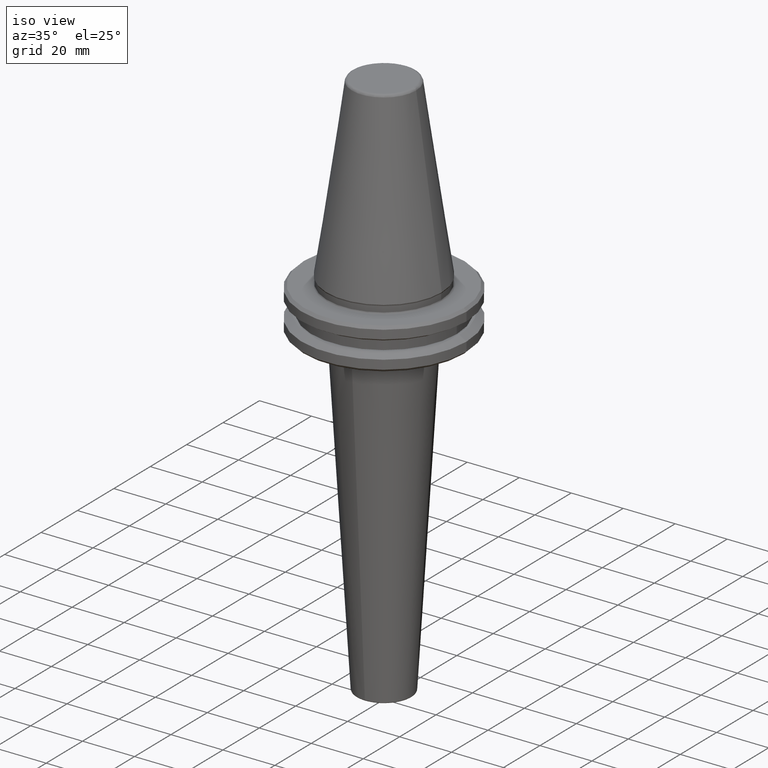
[diagram: clean part render]
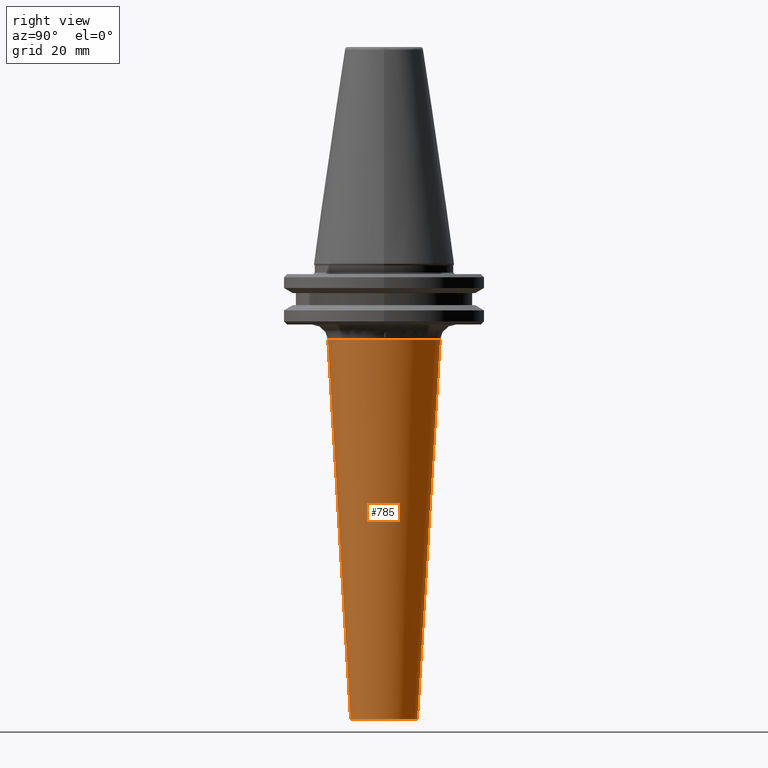
[diagram: tour spotlight — one face highlighted and labeled with its STEP entity id]
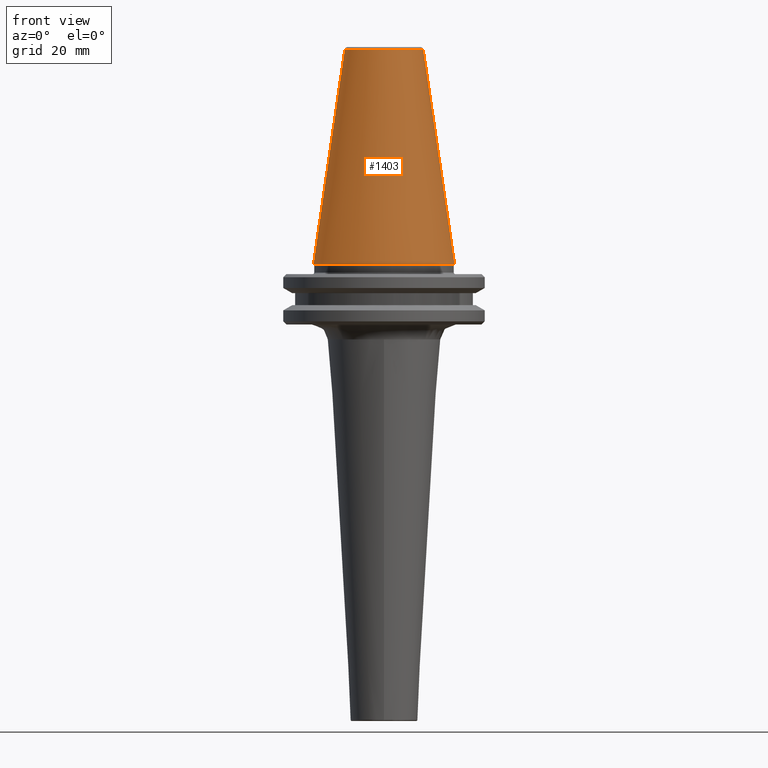
[diagram: tour spotlight — one face highlighted and labeled with its STEP entity id]
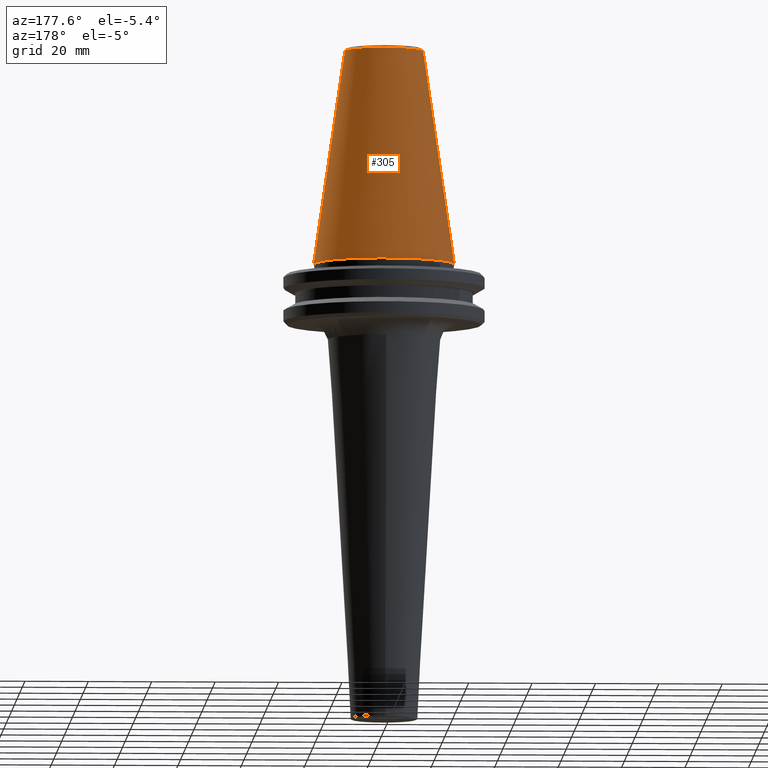
[diagram: tour spotlight — one face highlighted and labeled with its STEP entity id]
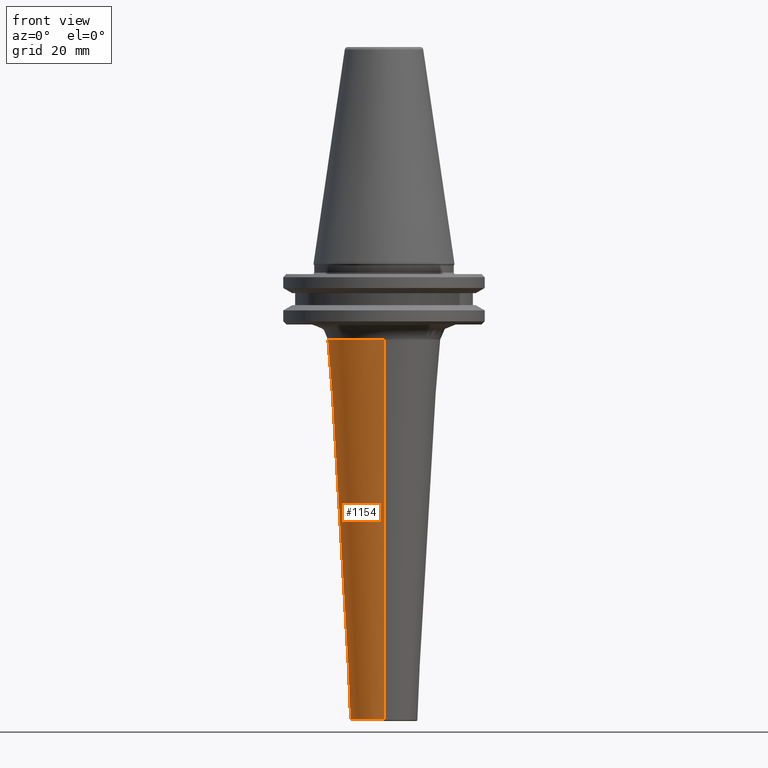
[diagram: tour spotlight — one face highlighted and labeled with its STEP entity id]
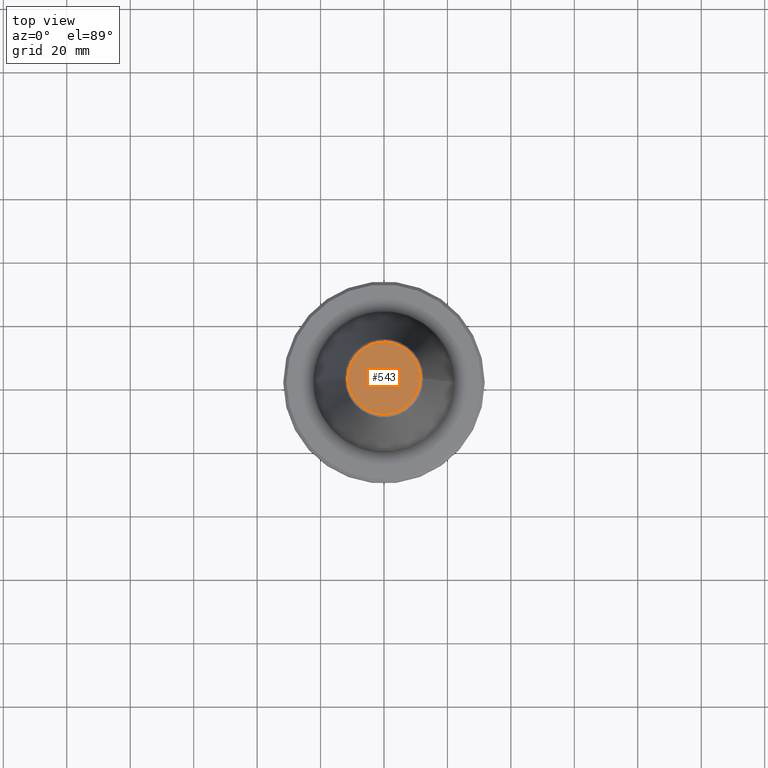
[diagram: tour spotlight — one face highlighted and labeled with its STEP entity id]
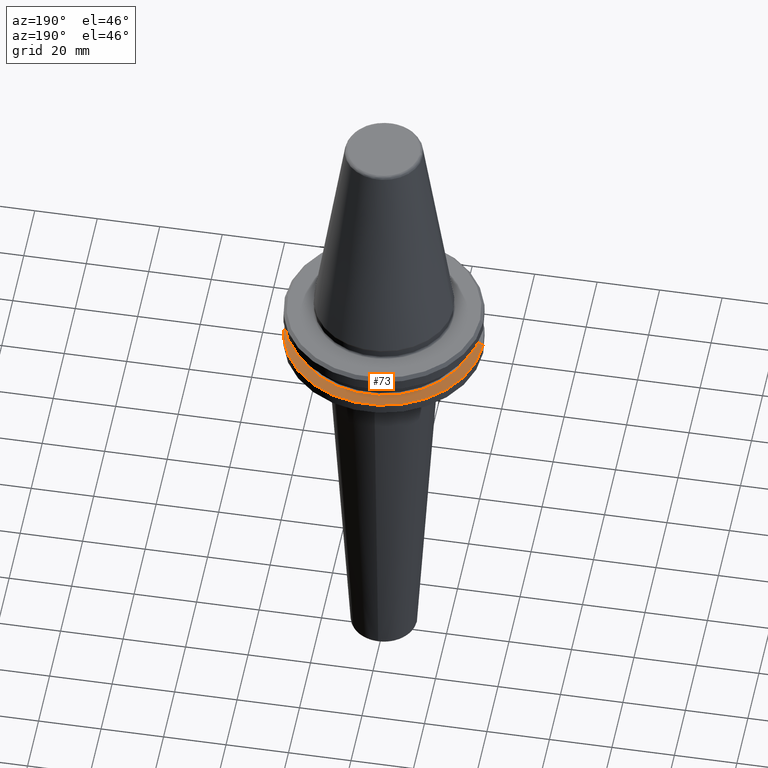
[diagram: tour spotlight — one face highlighted and labeled with its STEP entity id]
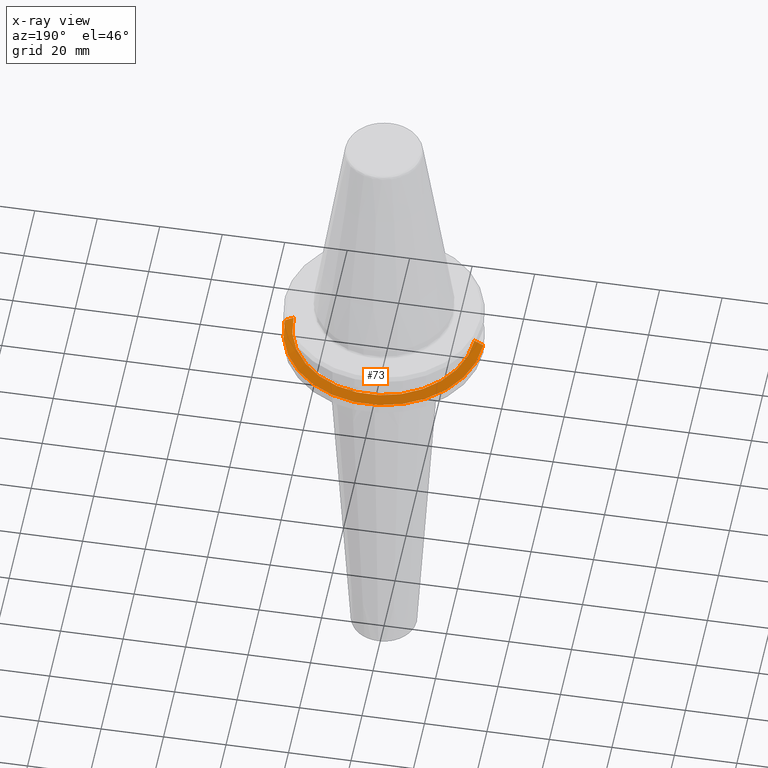
[diagram: x-ray of the same camera — body ghosted, this tour face saturated]
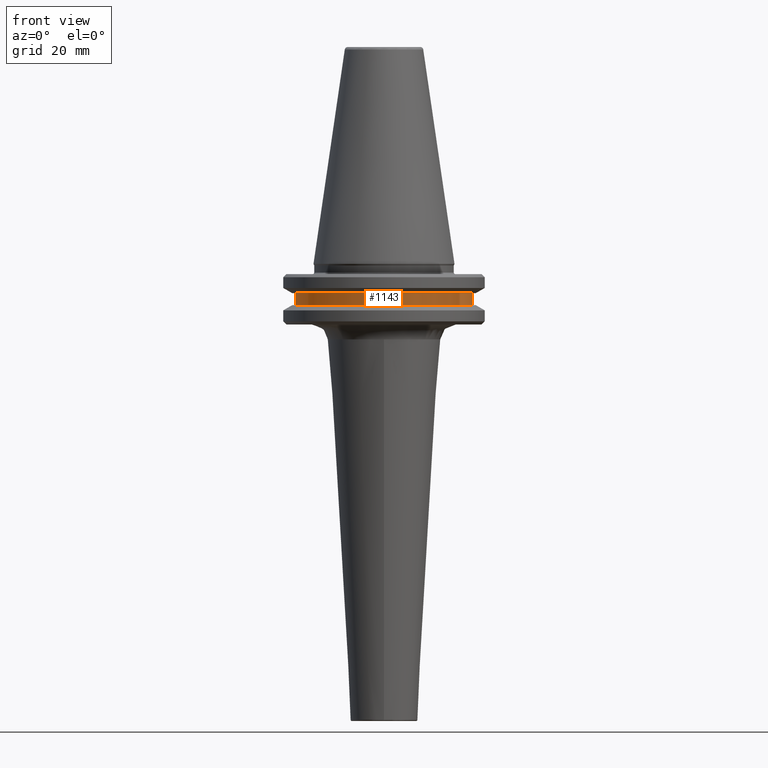
[diagram: tour spotlight — one face highlighted and labeled with its STEP entity id]
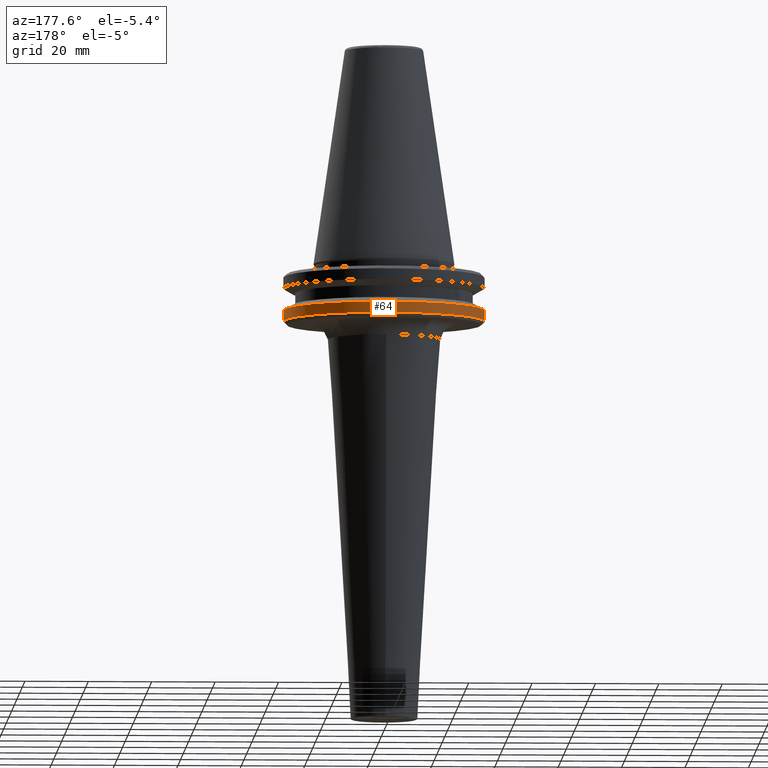
[diagram: tour spotlight — one face highlighted and labeled with its STEP entity id]
A machine part: a face-by-face anatomy tour. The part has 36 B-rep faces; the first image is the clean iso view, then the 8 largest visible faces are spotlighted one at a time (largest first), each with its STEP entity span.

Face 1 — right view, entity #785. In plain terms, the highlighted conical surface has half-angle 3.434 deg.
Definition (entity closure, byte-faithful):
#32 = LINE ( 'NONE', #249, #991 ) ;
#57 = CIRCLE ( 'NONE', #1131, 17.71796768721838300 ) ;
#66 = CARTESIAN_POINT ( 'NONE',  ( 1.729233750206187900E-015, 10.52256258502253400, -143.7239569162911400 ) ) ;
#67 = VERTEX_POINT ( 'NONE', #1467 ) ;
#71 = DIRECTION ( 'NONE',  ( 7.334690213358260400E-018, 0.05989229072794657900, 0.9982048454657787000 ) ) ;
#103 = EDGE_LOOP ( 'NONE', ( #699, #1398, #1448, #573, #756, #1138 ) ) ;
#123 = EDGE_CURVE ( 'NONE', #1255, #641, #1351, .T. ) ;
#127 = DIRECTION ( 'NONE',  ( -0.0000000000000000000, -0.0000000000000000000, -1.000000000000000000 ) ) ;
#135 = AXIS2_PLACEMENT_3D ( 'NONE', #928, #337, #450 ) ;
#212 = AXIS2_PLACEMENT_3D ( 'NONE', #645, #1494, #767 ) ;
#249 = CARTESIAN_POINT ( 'NONE',  ( 0.0000000000000000000, -17.71796768721838300, -23.80053854636023300 ) ) ;
#268 = DIRECTION ( 'NONE',  ( -0.0000000000000000000, -0.0000000000000000000, -1.000000000000000000 ) ) ;
#285 = CIRCLE ( 'NONE', #748, 17.71796768721838300 ) ;
#319 = VERTEX_POINT ( 'NONE', #837 ) ;
#321 = CARTESIAN_POINT ( 'NONE',  ( 10.52256258502254300, 0.0000000000000000000, -143.7239569162911400 ) ) ;
#337 = DIRECTION ( 'NONE',  ( 0.0000000000000000000, 0.0000000000000000000, 1.000000000000000000 ) ) ;
#404 = DIRECTION ( 'NONE',  ( 0.0000000000000000000, -9.790758774372438300E-017, 1.000000000000000000 ) ) ;
#450 = DIRECTION ( 'NONE',  ( 1.000000000000000000, 0.0000000000000000000, 0.0000000000000000000 ) ) ;
#485 = AXIS2_PLACEMENT_3D ( 'NONE', #870, #404, #994 ) ;
#507 = CARTESIAN_POINT ( 'NONE',  ( 0.0000000000000000000, -17.71796768721838000, -23.80053854636027200 ) ) ;
#555 = CARTESIAN_POINT ( 'NONE',  ( 2.169825241554822800E-015, 17.71796768721838300, -23.80053854636022600 ) ) ;
#573 = ORIENTED_EDGE ( 'NONE', *, *, #1533, .T. ) ;
#584 = LINE ( 'NONE', #555, #1344 ) ;
#641 = VERTEX_POINT ( 'NONE', #66 ) ;
#645 = CARTESIAN_POINT ( 'NONE',  ( 0.0000000000000000000, 0.0000000000000000000, -143.7239569162911400 ) ) ;
#699 = ORIENTED_EDGE ( 'NONE', *, *, #1388, .T. ) ;
#715 = CIRCLE ( 'NONE', #212, 10.52256258502253400 ) ;
#733 = DIRECTION ( 'NONE',  ( 0.0000000000000000000, -0.05989229072794677300, 0.9982048454657787000 ) ) ;
#748 = AXIS2_PLACEMENT_3D ( 'NONE', #842, #127, #966 ) ;
#756 = ORIENTED_EDGE ( 'NONE', *, *, #1073, .T. ) ;
#767 = DIRECTION ( 'NONE',  ( 1.000000000000000000, 0.0000000000000000000, 0.0000000000000000000 ) ) ;
#785 = ADVANCED_FACE ( 'NONE', ( #921 ), #1491, .T. ) ;
#837 = CARTESIAN_POINT ( 'NONE',  ( 2.169825241554822400E-015, 17.71796768721838000, -23.80053854636027200 ) ) ;
#840 = CARTESIAN_POINT ( 'NONE',  ( 17.71796768721838300, 0.0000000000000000000, -23.80053854636027200 ) ) ;
#842 = CARTESIAN_POINT ( 'NONE',  ( 0.0000000000000000000, 0.0000000000000000000, -23.80053854636027200 ) ) ;
#870 = CARTESIAN_POINT ( 'NONE',  ( 0.0000000000000000000, 0.0000000000000000000, -23.80053854636022900 ) ) ;
#921 = FACE_OUTER_BOUND ( 'NONE', #103, .T. ) ;
#928 = CARTESIAN_POINT ( 'NONE',  ( 0.0000000000000000000, 0.0000000000000000000, -143.7239569162911400 ) ) ;
#966 = DIRECTION ( 'NONE',  ( 1.000000000000000000, 0.0000000000000000000, 7.832607019497949600E-016 ) ) ;
#980 = CARTESIAN_POINT ( 'NONE',  ( 0.0000000000000000000, 0.0000000000000000000, -23.80053854636027200 ) ) ;
#991 = VECTOR ( 'NONE', #733, 1000.000000000000000 ) ;
#994 = DIRECTION ( 'NONE',  ( 0.0000000000000000000, -1.000000000000000000, -1.958151754874487400E-016 ) ) ;
#1073 = EDGE_CURVE ( 'NONE', #1414, #1160, #57, .T. ) ;
#1105 = DIRECTION ( 'NONE',  ( 1.000000000000000000, 0.0000000000000000000, 7.832607019497949600E-016 ) ) ;
#1131 = AXIS2_PLACEMENT_3D ( 'NONE', #980, #268, #1105 ) ;
#1138 = ORIENTED_EDGE ( 'NONE', *, *, #1453, .F. ) ;
#1160 = VERTEX_POINT ( 'NONE', #507 ) ;
#1189 = EDGE_CURVE ( 'NONE', #641, #319, #584, .T. ) ;
#1255 = VERTEX_POINT ( 'NONE', #321 ) ;
#1344 = VECTOR ( 'NONE', #71, 1000.000000000000000 ) ;
#1351 = CIRCLE ( 'NONE', #135, 10.52256258502253400 ) ;
#1388 = EDGE_CURVE ( 'NONE', #67, #1255, #715, .T. ) ;
#1398 = ORIENTED_EDGE ( 'NONE', *, *, #123, .T. ) ;
#1414 = VERTEX_POINT ( 'NONE', #840 ) ;
#1448 = ORIENTED_EDGE ( 'NONE', *, *, #1189, .T. ) ;
#1453 = EDGE_CURVE ( 'NONE', #67, #1160, #32, .T. ) ;
#1467 = CARTESIAN_POINT ( 'NONE',  ( 0.0000000000000000000, -10.52256258502253400, -143.7239569162911400 ) ) ;
#1491 = CONICAL_SURFACE ( 'NONE', #485, 17.71796768721838300, 0.05992815512120783900 ) ;
#1494 = DIRECTION ( 'NONE',  ( 0.0000000000000000000, 0.0000000000000000000, 1.000000000000000000 ) ) ;
#1533 = EDGE_CURVE ( 'NONE', #319, #1414, #285, .T. ) ;

Face 2 — front view, entity #1403. In plain terms, the highlighted conical surface has half-angle 8.297 deg.
Definition (entity closure, byte-faithful):
#25 = DIRECTION ( 'NONE',  ( -0.0000000000000000000, -0.0000000000000000000, -1.000000000000000000 ) ) ;
#55 = EDGE_CURVE ( 'NONE', #387, #336, #574, .T. ) ;
#60 = ORIENTED_EDGE ( 'NONE', *, *, #910, .T. ) ;
#79 = FACE_OUTER_BOUND ( 'NONE', #441, .T. ) ;
#122 = CARTESIAN_POINT ( 'NONE',  ( 22.22500000000000100, 2.721777511104992800E-015, 0.0000000000000000000 ) ) ;
#129 = VECTOR ( 'NONE', #759, 1000.000000000000000 ) ;
#148 = CARTESIAN_POINT ( 'NONE',  ( -22.22500000000000100, 0.0000000000000000000, 0.0000000000000000000 ) ) ;
#243 = CARTESIAN_POINT ( 'NONE',  ( -22.22500000000000100, 0.0000000000000000000, 0.0000000000000000000 ) ) ;
#251 = VECTOR ( 'NONE', #982, 1000.000000000000000 ) ;
#292 = ORIENTED_EDGE ( 'NONE', *, *, #1010, .F. ) ;
#318 = DIRECTION ( 'NONE',  ( 0.0000000000000000000, 0.0000000000000000000, -1.000000000000000000 ) ) ;
#336 = VERTEX_POINT ( 'NONE', #243 ) ;
#379 = CARTESIAN_POINT ( 'NONE',  ( 12.37469537611110800, 2.118620309691397300E-015, 67.54430822726729400 ) ) ;
#387 = VERTEX_POINT ( 'NONE', #713 ) ;
#425 = ORIENTED_EDGE ( 'NONE', *, *, #55, .T. ) ;
#441 = EDGE_LOOP ( 'NONE', ( #292, #60, #425, #1080 ) ) ;
#449 = VERTEX_POINT ( 'NONE', #379 ) ;
#460 = LINE ( 'NONE', #631, #129 ) ;
#465 = AXIS2_PLACEMENT_3D ( 'NONE', #750, #25, #863 ) ;
#572 = CARTESIAN_POINT ( 'NONE',  ( 0.0000000000000000000, 0.0000000000000000000, 67.54430822726729400 ) ) ;
#574 = LINE ( 'NONE', #148, #251 ) ;
#631 = CARTESIAN_POINT ( 'NONE',  ( 22.22500000000000100, 2.721777511104992800E-015, 0.0000000000000000000 ) ) ;
#633 = CONICAL_SURFACE ( 'NONE', #930, 22.22500000000000100, 0.1448138465474190500 ) ;
#713 = CARTESIAN_POINT ( 'NONE',  ( -12.37469537611110800, 0.0000000000000000000, 67.54430822726729400 ) ) ;
#750 = CARTESIAN_POINT ( 'NONE',  ( 0.0000000000000000000, 0.0000000000000000000, 0.0000000000000000000 ) ) ;
#759 = DIRECTION ( 'NONE',  ( 0.1443082272673070500, 1.767266086135363700E-017, -0.9895327864921743500 ) ) ;
#863 = DIRECTION ( 'NONE',  ( 1.000000000000000000, 0.0000000000000000000, 9.822541477422708000E-017 ) ) ;
#879 = CIRCLE ( 'NONE', #1326, 12.37469537611110800 ) ;
#910 = EDGE_CURVE ( 'NONE', #449, #387, #879, .T. ) ;
#930 = AXIS2_PLACEMENT_3D ( 'NONE', #1380, #1126, #1337 ) ;
#972 = CIRCLE ( 'NONE', #465, 22.22500000000000500 ) ;
#982 = DIRECTION ( 'NONE',  ( -0.1443082272673070500, 0.0000000000000000000, -0.9895327864921743500 ) ) ;
#1010 = EDGE_CURVE ( 'NONE', #449, #1515, #460, .T. ) ;
#1080 = ORIENTED_EDGE ( 'NONE', *, *, #1123, .F. ) ;
#1109 = DIRECTION ( 'NONE',  ( -1.000000000000000000, 0.0000000000000000000, 0.0000000000000000000 ) ) ;
#1123 = EDGE_CURVE ( 'NONE', #1515, #336, #972, .T. ) ;
#1126 = DIRECTION ( 'NONE',  ( 0.0000000000000000000, 0.0000000000000000000, -1.000000000000000000 ) ) ;
#1326 = AXIS2_PLACEMENT_3D ( 'NONE', #572, #318, #1109 ) ;
#1337 = DIRECTION ( 'NONE',  ( -1.000000000000000000, 0.0000000000000000000, 0.0000000000000000000 ) ) ;
#1380 = CARTESIAN_POINT ( 'NONE',  ( 0.0000000000000000000, 0.0000000000000000000, 0.0000000000000000000 ) ) ;
#1403 = ADVANCED_FACE ( 'NONE', ( #79 ), #633, .T. ) ;
#1515 = VERTEX_POINT ( 'NONE', #122 ) ;

Face 3 — auxiliary view, entity #305. In plain terms, the highlighted conical surface has half-angle 8.297 deg.
Definition (entity closure, byte-faithful):
#1 = EDGE_LOOP ( 'NONE', ( #1303, #1252, #516, #513 ) ) ;
#55 = EDGE_CURVE ( 'NONE', #387, #336, #574, .T. ) ;
#114 = AXIS2_PLACEMENT_3D ( 'NONE', #1407, #673, #1518 ) ;
#122 = CARTESIAN_POINT ( 'NONE',  ( 22.22500000000000100, 2.721777511104992800E-015, 0.0000000000000000000 ) ) ;
#129 = VECTOR ( 'NONE', #759, 1000.000000000000000 ) ;
#148 = CARTESIAN_POINT ( 'NONE',  ( -22.22500000000000100, 0.0000000000000000000, 0.0000000000000000000 ) ) ;
#237 = FACE_OUTER_BOUND ( 'NONE', #1, .T. ) ;
#243 = CARTESIAN_POINT ( 'NONE',  ( -22.22500000000000100, 0.0000000000000000000, 0.0000000000000000000 ) ) ;
#251 = VECTOR ( 'NONE', #982, 1000.000000000000000 ) ;
#305 = ADVANCED_FACE ( 'NONE', ( #237 ), #1355, .T. ) ;
#336 = VERTEX_POINT ( 'NONE', #243 ) ;
#367 = DIRECTION ( 'NONE',  ( 0.0000000000000000000, 0.0000000000000000000, -1.000000000000000000 ) ) ;
#379 = CARTESIAN_POINT ( 'NONE',  ( 12.37469537611110800, 2.118620309691397300E-015, 67.54430822726729400 ) ) ;
#381 = CIRCLE ( 'NONE', #1544, 12.37469537611110800 ) ;
#385 = CARTESIAN_POINT ( 'NONE',  ( 0.0000000000000000000, 0.0000000000000000000, 67.54430822726729400 ) ) ;
#387 = VERTEX_POINT ( 'NONE', #713 ) ;
#449 = VERTEX_POINT ( 'NONE', #379 ) ;
#460 = LINE ( 'NONE', #631, #129 ) ;
#502 = DIRECTION ( 'NONE',  ( -1.000000000000000000, 0.0000000000000000000, 0.0000000000000000000 ) ) ;
#513 = ORIENTED_EDGE ( 'NONE', *, *, #55, .F. ) ;
#516 = ORIENTED_EDGE ( 'NONE', *, *, #1183, .F. ) ;
#574 = LINE ( 'NONE', #148, #251 ) ;
#631 = CARTESIAN_POINT ( 'NONE',  ( 22.22500000000000100, 2.721777511104992800E-015, 0.0000000000000000000 ) ) ;
#673 = DIRECTION ( 'NONE',  ( -0.0000000000000000000, -0.0000000000000000000, -1.000000000000000000 ) ) ;
#713 = CARTESIAN_POINT ( 'NONE',  ( -12.37469537611110800, 0.0000000000000000000, 67.54430822726729400 ) ) ;
#716 = CARTESIAN_POINT ( 'NONE',  ( 0.0000000000000000000, 0.0000000000000000000, 0.0000000000000000000 ) ) ;
#759 = DIRECTION ( 'NONE',  ( 0.1443082272673070500, 1.767266086135363700E-017, -0.9895327864921743500 ) ) ;
#939 = CIRCLE ( 'NONE', #114, 22.22500000000000500 ) ;
#942 = AXIS2_PLACEMENT_3D ( 'NONE', #716, #367, #1084 ) ;
#982 = DIRECTION ( 'NONE',  ( -0.1443082272673070500, 0.0000000000000000000, -0.9895327864921743500 ) ) ;
#1010 = EDGE_CURVE ( 'NONE', #449, #1515, #460, .T. ) ;
#1049 = EDGE_CURVE ( 'NONE', #387, #449, #381, .T. ) ;
#1084 = DIRECTION ( 'NONE',  ( -1.000000000000000000, 0.0000000000000000000, 0.0000000000000000000 ) ) ;
#1183 = EDGE_CURVE ( 'NONE', #336, #1515, #939, .T. ) ;
#1230 = DIRECTION ( 'NONE',  ( 0.0000000000000000000, 0.0000000000000000000, -1.000000000000000000 ) ) ;
#1252 = ORIENTED_EDGE ( 'NONE', *, *, #1010, .T. ) ;
#1303 = ORIENTED_EDGE ( 'NONE', *, *, #1049, .T. ) ;
#1355 = CONICAL_SURFACE ( 'NONE', #942, 22.22500000000000100, 0.1448138465474190500 ) ;
#1407 = CARTESIAN_POINT ( 'NONE',  ( 0.0000000000000000000, 0.0000000000000000000, 0.0000000000000000000 ) ) ;
#1515 = VERTEX_POINT ( 'NONE', #122 ) ;
#1518 = DIRECTION ( 'NONE',  ( 1.000000000000000000, 0.0000000000000000000, 9.822541477422708000E-017 ) ) ;
#1544 = AXIS2_PLACEMENT_3D ( 'NONE', #385, #1230, #502 ) ;

Face 4 — front view, entity #1154. In plain terms, the highlighted conical surface has half-angle 3.434 deg.
Definition (entity closure, byte-faithful):
#32 = LINE ( 'NONE', #249, #991 ) ;
#66 = CARTESIAN_POINT ( 'NONE',  ( 1.729233750206187900E-015, 10.52256258502253400, -143.7239569162911400 ) ) ;
#67 = VERTEX_POINT ( 'NONE', #1467 ) ;
#71 = DIRECTION ( 'NONE',  ( 7.334690213358260400E-018, 0.05989229072794657900, 0.9982048454657787000 ) ) ;
#130 = DIRECTION ( 'NONE',  ( -0.0000000000000000000, -0.0000000000000000000, -1.000000000000000000 ) ) ;
#157 = ORIENTED_EDGE ( 'NONE', *, *, #587, .T. ) ;
#249 = CARTESIAN_POINT ( 'NONE',  ( 0.0000000000000000000, -17.71796768721838300, -23.80053854636023300 ) ) ;
#309 = FACE_OUTER_BOUND ( 'NONE', #389, .T. ) ;
#313 = DIRECTION ( 'NONE',  ( 1.000000000000000000, 0.0000000000000000000, 7.832607019497949600E-016 ) ) ;
#319 = VERTEX_POINT ( 'NONE', #837 ) ;
#322 = DIRECTION ( 'NONE',  ( -0.0000000000000000000, -0.0000000000000000000, -1.000000000000000000 ) ) ;
#328 = CARTESIAN_POINT ( 'NONE',  ( 0.0000000000000000000, 0.0000000000000000000, -23.80053854636027200 ) ) ;
#371 = DIRECTION ( 'NONE',  ( 1.000000000000000000, 0.0000000000000000000, 0.0000000000000000000 ) ) ;
#389 = EDGE_LOOP ( 'NONE', ( #795, #550, #1214, #1541, #830, #157 ) ) ;
#429 = CIRCLE ( 'NONE', #1377, 10.52256258502253400 ) ;
#436 = CARTESIAN_POINT ( 'NONE',  ( -10.52256258502254300, 1.288642258857556000E-015, -143.7239569162911400 ) ) ;
#507 = CARTESIAN_POINT ( 'NONE',  ( 0.0000000000000000000, -17.71796768721838000, -23.80053854636027200 ) ) ;
#530 = EDGE_CURVE ( 'NONE', #641, #1202, #429, .T. ) ;
#550 = ORIENTED_EDGE ( 'NONE', *, *, #530, .T. ) ;
#555 = CARTESIAN_POINT ( 'NONE',  ( 2.169825241554822800E-015, 17.71796768721838300, -23.80053854636022600 ) ) ;
#584 = LINE ( 'NONE', #555, #1344 ) ;
#587 = EDGE_CURVE ( 'NONE', #1498, #319, #964, .T. ) ;
#590 = AXIS2_PLACEMENT_3D ( 'NONE', #328, #322, #313 ) ;
#597 = DIRECTION ( 'NONE',  ( 0.0000000000000000000, 0.0000000000000000000, 1.000000000000000000 ) ) ;
#628 = DIRECTION ( 'NONE',  ( 0.0000000000000000000, -9.790758774372438300E-017, 1.000000000000000000 ) ) ;
#641 = VERTEX_POINT ( 'NONE', #66 ) ;
#682 = CIRCLE ( 'NONE', #967, 17.71796768721838300 ) ;
#728 = CARTESIAN_POINT ( 'NONE',  ( 0.0000000000000000000, 0.0000000000000000000, -143.7239569162911400 ) ) ;
#733 = DIRECTION ( 'NONE',  ( 0.0000000000000000000, -0.05989229072794677300, 0.9982048454657787000 ) ) ;
#795 = ORIENTED_EDGE ( 'NONE', *, *, #1189, .F. ) ;
#804 = AXIS2_PLACEMENT_3D ( 'NONE', #728, #597, #371 ) ;
#830 = ORIENTED_EDGE ( 'NONE', *, *, #1439, .T. ) ;
#837 = CARTESIAN_POINT ( 'NONE',  ( 2.169825241554822400E-015, 17.71796768721838000, -23.80053854636027200 ) ) ;
#846 = CARTESIAN_POINT ( 'NONE',  ( 0.0000000000000000000, 0.0000000000000000000, -23.80053854636027200 ) ) ;
#884 = EDGE_CURVE ( 'NONE', #1202, #67, #1532, .T. ) ;
#964 = CIRCLE ( 'NONE', #590, 17.71796768721838300 ) ;
#967 = AXIS2_PLACEMENT_3D ( 'NONE', #846, #130, #968 ) ;
#968 = DIRECTION ( 'NONE',  ( 1.000000000000000000, 0.0000000000000000000, 7.832607019497949600E-016 ) ) ;
#991 = VECTOR ( 'NONE', #733, 1000.000000000000000 ) ;
#1100 = AXIS2_PLACEMENT_3D ( 'NONE', #1482, #628, #1241 ) ;
#1154 = ADVANCED_FACE ( 'NONE', ( #309 ), #1510, .T. ) ;
#1160 = VERTEX_POINT ( 'NONE', #507 ) ;
#1189 = EDGE_CURVE ( 'NONE', #641, #319, #584, .T. ) ;
#1202 = VERTEX_POINT ( 'NONE', #436 ) ;
#1214 = ORIENTED_EDGE ( 'NONE', *, *, #884, .T. ) ;
#1241 = DIRECTION ( 'NONE',  ( 0.0000000000000000000, -1.000000000000000000, -1.958151754874487400E-016 ) ) ;
#1256 = DIRECTION ( 'NONE',  ( 1.000000000000000000, 0.0000000000000000000, 0.0000000000000000000 ) ) ;
#1264 = DIRECTION ( 'NONE',  ( 0.0000000000000000000, 0.0000000000000000000, 1.000000000000000000 ) ) ;
#1286 = CARTESIAN_POINT ( 'NONE',  ( 0.0000000000000000000, 0.0000000000000000000, -143.7239569162911400 ) ) ;
#1344 = VECTOR ( 'NONE', #71, 1000.000000000000000 ) ;
#1346 = CARTESIAN_POINT ( 'NONE',  ( -17.71796768721838300, 2.475437333778084000E-015, -23.80053854636027200 ) ) ;
#1377 = AXIS2_PLACEMENT_3D ( 'NONE', #1286, #1264, #1256 ) ;
#1439 = EDGE_CURVE ( 'NONE', #1160, #1498, #682, .T. ) ;
#1453 = EDGE_CURVE ( 'NONE', #67, #1160, #32, .T. ) ;
#1467 = CARTESIAN_POINT ( 'NONE',  ( 0.0000000000000000000, -10.52256258502253400, -143.7239569162911400 ) ) ;
#1482 = CARTESIAN_POINT ( 'NONE',  ( 0.0000000000000000000, 0.0000000000000000000, -23.80053854636022900 ) ) ;
#1498 = VERTEX_POINT ( 'NONE', #1346 ) ;
#1510 = CONICAL_SURFACE ( 'NONE', #1100, 17.71796768721838300, 0.05992815512120783900 ) ;
#1532 = CIRCLE ( 'NONE', #804, 10.52256258502253400 ) ;
#1541 = ORIENTED_EDGE ( 'NONE', *, *, #1453, .T. ) ;

Face 5 — top view, entity #543. In plain terms, the highlighted planar face has unit normal (0, 0, 1).
Definition (entity closure, byte-faithful):
#58 = VERTEX_POINT ( 'NONE', #992 ) ;
#144 = CARTESIAN_POINT ( 'NONE',  ( -11.38516258961893100, 1.418516855507481500E-015, 68.39999999999999100 ) ) ;
#232 = CARTESIAN_POINT ( 'NONE',  ( -11.38516258961893400, -22.77032517923785800, 68.39999999999999100 ) ) ;
#270 = CARTESIAN_POINT ( 'NONE',  ( 11.38516258961893100, 22.77032517923785800, 68.39999999999999100 ) ) ;
#280 = CARTESIAN_POINT ( 'NONE',  ( 11.38516258961893100, 0.0000000000000000000, 68.39999999999999100 ) ) ;
#299 = CARTESIAN_POINT ( 'NONE',  ( 11.38516258961893100, 0.0000000000000000000, 68.39999999999999100 ) ) ;
#369 = ORIENTED_EDGE ( 'NONE', *, *, #1342, .F. ) ;
#467 = CARTESIAN_POINT ( 'NONE',  ( 11.38516258961893100, -22.77032517923785800, 68.39999999999999100 ) ) ;
#469 =( BOUNDED_CURVE ( )  B_SPLINE_CURVE ( 3, ( #299, #467, #232, #1196 ),
 .UNSPECIFIED., .F., .T. ) 
 B_SPLINE_CURVE_WITH_KNOTS ( ( 4, 4 ),
 ( 0.0000000000000000000, 1.000000000000000000 ),
 .UNSPECIFIED. ) 
 CURVE ( )  GEOMETRIC_REPRESENTATION_ITEM ( )  RATIONAL_B_SPLINE_CURVE ( ( 1.000000000000000000, 0.3333333333333333700, 0.3333333333333333700, 1.000000000000000000 ) ) 
 REPRESENTATION_ITEM ( '' )  );
#543 = ADVANCED_FACE ( 'NONE', ( #1543 ), #1497, .T. ) ;
#674 = AXIS2_PLACEMENT_3D ( 'NONE', #1292, #1045, #1032 ) ;
#694 = EDGE_CURVE ( 'NONE', #835, #58, #469, .T. ) ;
#753 = ORIENTED_EDGE ( 'NONE', *, *, #694, .F. ) ;
#835 = VERTEX_POINT ( 'NONE', #280 ) ;
#983 = CARTESIAN_POINT ( 'NONE',  ( -11.38516258961892700, 22.77032517923785800, 68.39999999999999100 ) ) ;
#992 = CARTESIAN_POINT ( 'NONE',  ( -11.38516258961893100, 1.418516855507481500E-015, 68.39999999999999100 ) ) ;
#1000 = EDGE_LOOP ( 'NONE', ( #369, #753 ) ) ;
#1032 = DIRECTION ( 'NONE',  ( 1.000000000000000000, 0.0000000000000000000, -0.0000000000000000000 ) ) ;
#1045 = DIRECTION ( 'NONE',  ( 0.0000000000000000000, 0.0000000000000000000, 1.000000000000000000 ) ) ;
#1107 = CARTESIAN_POINT ( 'NONE',  ( 11.38516258961893100, 0.0000000000000000000, 68.39999999999999100 ) ) ;
#1196 = CARTESIAN_POINT ( 'NONE',  ( -11.38516258961893100, 1.418516855507481500E-015, 68.39999999999999100 ) ) ;
#1292 = CARTESIAN_POINT ( 'NONE',  ( 0.0000000000000000000, -8.337524199435086500E-014, 68.39999999999999100 ) ) ;
#1313 =( BOUNDED_CURVE ( )  B_SPLINE_CURVE ( 3, ( #144, #983, #270, #1107 ),
 .UNSPECIFIED., .F., .T. ) 
 B_SPLINE_CURVE_WITH_KNOTS ( ( 4, 4 ),
 ( 0.0000000000000000000, 1.000000000000000000 ),
 .UNSPECIFIED. ) 
 CURVE ( )  GEOMETRIC_REPRESENTATION_ITEM ( )  RATIONAL_B_SPLINE_CURVE ( ( 1.000000000000000000, 0.3333333333333333700, 0.3333333333333333700, 1.000000000000000000 ) ) 
 REPRESENTATION_ITEM ( '' )  );
#1342 = EDGE_CURVE ( 'NONE', #58, #835, #1313, .T. ) ;
#1497 = PLANE ( 'NONE',  #674 ) ;
#1543 = FACE_OUTER_BOUND ( 'NONE', #1000, .T. ) ;

Face 6 — auxiliary view, entity #73. An x-ray twin of the same camera follows (body ghosted, this face saturated) — the face is partly hidden behind the body. In plain terms, the highlighted conical surface has half-angle 60 deg.
Definition (entity closure, byte-faithful):
#2 = CARTESIAN_POINT ( 'NONE',  ( -31.75000000000000000, 0.0000000000000000000, -14.62183664205671200 ) ) ;
#26 = CARTESIAN_POINT ( 'NONE',  ( 0.0000000000000000000, 0.0000000000000000000, -13.00000000000001100 ) ) ;
#36 = ORIENTED_EDGE ( 'NONE', *, *, #1240, .T. ) ;
#73 = ADVANCED_FACE ( 'NONE', ( #134 ), #384, .T. ) ;
#85 = EDGE_LOOP ( 'NONE', ( #273, #799, #36, #1349 ) ) ;
#86 = VERTEX_POINT ( 'NONE', #681 ) ;
#100 = DIRECTION ( 'NONE',  ( -0.0000000000000000000, -0.0000000000000000000, 1.000000000000000000 ) ) ;
#134 = FACE_OUTER_BOUND ( 'NONE', #85, .T. ) ;
#139 = CARTESIAN_POINT ( 'NONE',  ( 28.94089653438085100, 3.716245608910601600E-015, -13.00000000000001100 ) ) ;
#149 = DIRECTION ( 'NONE',  ( -1.000000000000000000, 0.0000000000000000000, 0.0000000000000000000 ) ) ;
#255 = CARTESIAN_POINT ( 'NONE',  ( -28.94089653438085100, 0.0000000000000000000, -13.00000000000001100 ) ) ;
#256 = DIRECTION ( 'NONE',  ( 0.0000000000000000000, 0.0000000000000000000, -1.000000000000000000 ) ) ;
#272 = EDGE_CURVE ( 'NONE', #463, #86, #905, .T. ) ;
#273 = ORIENTED_EDGE ( 'NONE', *, *, #1345, .T. ) ;
#291 = AXIS2_PLACEMENT_3D ( 'NONE', #26, #865, #149 ) ;
#344 = DIRECTION ( 'NONE',  ( -1.000000000000000000, 0.0000000000000000000, 0.0000000000000000000 ) ) ;
#384 = CONICAL_SURFACE ( 'NONE', #1058, 31.75000000000000000, 1.047197551196604300 ) ;
#422 = CARTESIAN_POINT ( 'NONE',  ( 31.75000000000000000, 3.888253587292846500E-015, -14.62183664205671200 ) ) ;
#463 = VERTEX_POINT ( 'NONE', #255 ) ;
#514 = DIRECTION ( 'NONE',  ( 0.8660254037844420400, 1.060575238724911000E-016, -0.4999999999999943900 ) ) ;
#518 = AXIS2_PLACEMENT_3D ( 'NONE', #797, #100, #935 ) ;
#529 = LINE ( 'NONE', #422, #1456 ) ;
#681 = CARTESIAN_POINT ( 'NONE',  ( -31.75000000000000000, 0.0000000000000000000, -14.62183664205671200 ) ) ;
#722 = VECTOR ( 'NONE', #839, 999.9999999999998900 ) ;
#797 = CARTESIAN_POINT ( 'NONE',  ( 0.0000000000000000000, 0.0000000000000000000, -14.62183664205671200 ) ) ;
#799 = ORIENTED_EDGE ( 'NONE', *, *, #931, .T. ) ;
#839 = DIRECTION ( 'NONE',  ( -0.8660254037844420400, 0.0000000000000000000, -0.4999999999999943900 ) ) ;
#865 = DIRECTION ( 'NONE',  ( 0.0000000000000000000, 0.0000000000000000000, -1.000000000000000000 ) ) ;
#899 = CIRCLE ( 'NONE', #518, 31.75000000000000000 ) ;
#905 = LINE ( 'NONE', #2, #722 ) ;
#913 = CARTESIAN_POINT ( 'NONE',  ( 31.75000000000000000, 3.888253587292846500E-015, -14.62183664205671200 ) ) ;
#931 = EDGE_CURVE ( 'NONE', #1063, #1239, #529, .T. ) ;
#935 = DIRECTION ( 'NONE',  ( -1.000000000000000000, 0.0000000000000000000, -5.463695987328526400E-017 ) ) ;
#1058 = AXIS2_PLACEMENT_3D ( 'NONE', #1225, #256, #344 ) ;
#1063 = VERTEX_POINT ( 'NONE', #139 ) ;
#1225 = CARTESIAN_POINT ( 'NONE',  ( 0.0000000000000000000, 0.0000000000000000000, -14.62183664205671200 ) ) ;
#1239 = VERTEX_POINT ( 'NONE', #913 ) ;
#1240 = EDGE_CURVE ( 'NONE', #1239, #86, #899, .T. ) ;
#1345 = EDGE_CURVE ( 'NONE', #463, #1063, #1474, .T. ) ;
#1349 = ORIENTED_EDGE ( 'NONE', *, *, #272, .F. ) ;
#1456 = VECTOR ( 'NONE', #514, 999.9999999999998900 ) ;
#1474 = CIRCLE ( 'NONE', #291, 28.94089653438085100 ) ;

Face 7 — front view, entity #1143. In plain terms, the highlighted cylindrical surface (partial cylindrical patch) has radius 28 mm, axis along (0, 0, 1).
Definition (entity closure, byte-faithful):
#18 = VECTOR ( 'NONE', #174, 1000.000000000000000 ) ;
#37 = ORIENTED_EDGE ( 'NONE', *, *, #564, .F. ) ;
#143 = EDGE_CURVE ( 'NONE', #233, #903, #1093, .T. ) ;
#146 = DIRECTION ( 'NONE',  ( 1.000000000000000000, 0.0000000000000000000, 0.0000000000000000000 ) ) ;
#151 = ORIENTED_EDGE ( 'NONE', *, *, #632, .T. ) ;
#170 = DIRECTION ( 'NONE',  ( 0.0000000000000000000, 0.0000000000000000000, 1.000000000000000000 ) ) ;
#174 = DIRECTION ( 'NONE',  ( 0.0000000000000000000, 0.0000000000000000000, 1.000000000000000000 ) ) ;
#181 = CARTESIAN_POINT ( 'NONE',  ( 28.00000000000000000, 0.0000000000000000000, -9.199999999999999300 ) ) ;
#185 = EDGE_CURVE ( 'NONE', #495, #233, #1496, .T. ) ;
#197 = DIRECTION ( 'NONE',  ( 1.000000000000000000, 0.0000000000000000000, 0.0000000000000000000 ) ) ;
#233 = VERTEX_POINT ( 'NONE', #181 ) ;
#303 = CARTESIAN_POINT ( 'NONE',  ( 28.00000000000000000, 0.0000000000000000000, 113.5216080541959500 ) ) ;
#370 = ORIENTED_EDGE ( 'NONE', *, *, #143, .T. ) ;
#495 = VERTEX_POINT ( 'NONE', #1451 ) ;
#531 = EDGE_LOOP ( 'NONE', ( #37, #151, #926, #370 ) ) ;
#532 = CARTESIAN_POINT ( 'NONE',  ( -28.00000000000000000, 3.429011037612589300E-015, 113.5216080541959500 ) ) ;
#537 = CARTESIAN_POINT ( 'NONE',  ( 0.0000000000000000000, 0.0000000000000000000, -13.00000000000001100 ) ) ;
#564 = EDGE_CURVE ( 'NONE', #1061, #903, #1041, .T. ) ;
#618 = FACE_OUTER_BOUND ( 'NONE', #531, .T. ) ;
#632 = EDGE_CURVE ( 'NONE', #1061, #495, #717, .T. ) ;
#646 = VECTOR ( 'NONE', #916, 1000.000000000000000 ) ;
#697 = CYLINDRICAL_SURFACE ( 'NONE', #1288, 28.00000000000000000 ) ;
#717 = CIRCLE ( 'NONE', #832, 28.00000000000000000 ) ;
#740 = AXIS2_PLACEMENT_3D ( 'NONE', #922, #1052, #1166 ) ;
#832 = AXIS2_PLACEMENT_3D ( 'NONE', #537, #170, #197 ) ;
#843 = CARTESIAN_POINT ( 'NONE',  ( -28.00000000000000000, 3.429011037612589300E-015, -13.00000000000001100 ) ) ;
#888 = CARTESIAN_POINT ( 'NONE',  ( -28.00000000000000000, 3.429011037612589300E-015, -9.199999999999999300 ) ) ;
#903 = VERTEX_POINT ( 'NONE', #888 ) ;
#916 = DIRECTION ( 'NONE',  ( 0.0000000000000000000, 0.0000000000000000000, 1.000000000000000000 ) ) ;
#922 = CARTESIAN_POINT ( 'NONE',  ( 0.0000000000000000000, 0.0000000000000000000, -9.199999999999999300 ) ) ;
#926 = ORIENTED_EDGE ( 'NONE', *, *, #185, .T. ) ;
#986 = CARTESIAN_POINT ( 'NONE',  ( 0.0000000000000000000, 0.0000000000000000000, 113.5216080541959500 ) ) ;
#1041 = LINE ( 'NONE', #532, #646 ) ;
#1052 = DIRECTION ( 'NONE',  ( -0.0000000000000000000, -0.0000000000000000000, -1.000000000000000000 ) ) ;
#1061 = VERTEX_POINT ( 'NONE', #843 ) ;
#1093 = CIRCLE ( 'NONE', #740, 28.00000000000000000 ) ;
#1111 = DIRECTION ( 'NONE',  ( 0.0000000000000000000, 0.0000000000000000000, 1.000000000000000000 ) ) ;
#1143 = ADVANCED_FACE ( 'NONE', ( #618 ), #697, .T. ) ;
#1166 = DIRECTION ( 'NONE',  ( 1.000000000000000000, 0.0000000000000000000, 0.0000000000000000000 ) ) ;
#1288 = AXIS2_PLACEMENT_3D ( 'NONE', #986, #1111, #146 ) ;
#1451 = CARTESIAN_POINT ( 'NONE',  ( 28.00000000000000000, 0.0000000000000000000, -13.00000000000001100 ) ) ;
#1496 = LINE ( 'NONE', #303, #18 ) ;

Face 8 — auxiliary view, entity #64. In plain terms, the highlighted cylindrical surface (partial cylindrical patch) has radius 31.75 mm, axis along (0, 0, 1).
Definition (entity closure, byte-faithful):
#64 = ADVANCED_FACE ( 'NONE', ( #1461 ), #466, .T. ) ;
#83 = AXIS2_PLACEMENT_3D ( 'NONE', #471, #349, #1186 ) ;
#86 = VERTEX_POINT ( 'NONE', #681 ) ;
#100 = DIRECTION ( 'NONE',  ( -0.0000000000000000000, -0.0000000000000000000, 1.000000000000000000 ) ) ;
#136 = ORIENTED_EDGE ( 'NONE', *, *, #1274, .F. ) ;
#138 = VECTOR ( 'NONE', #609, 1000.000000000000000 ) ;
#231 = VECTOR ( 'NONE', #627, 1000.000000000000000 ) ;
#252 = DIRECTION ( 'NONE',  ( 0.0000000000000000000, 0.0000000000000000000, 1.000000000000000000 ) ) ;
#279 = DIRECTION ( 'NONE',  ( 1.000000000000000000, 0.0000000000000000000, 0.0000000000000000000 ) ) ;
#334 = CIRCLE ( 'NONE', #83, 31.75000000000005700 ) ;
#349 = DIRECTION ( 'NONE',  ( -0.0000000000000000000, -0.0000000000000000000, 1.000000000000000000 ) ) ;
#391 = EDGE_CURVE ( 'NONE', #468, #86, #742, .T. ) ;
#447 = VERTEX_POINT ( 'NONE', #1086 ) ;
#466 = CYLINDRICAL_SURFACE ( 'NONE', #1440, 31.75000000000000000 ) ;
#468 = VERTEX_POINT ( 'NONE', #953 ) ;
#471 = CARTESIAN_POINT ( 'NONE',  ( 0.0000000000000000000, 0.0000000000000000000, -18.10000000000066900 ) ) ;
#518 = AXIS2_PLACEMENT_3D ( 'NONE', #797, #100, #935 ) ;
#538 = ORIENTED_EDGE ( 'NONE', *, *, #1240, .F. ) ;
#609 = DIRECTION ( 'NONE',  ( 0.0000000000000000000, 0.0000000000000000000, 1.000000000000000000 ) ) ;
#627 = DIRECTION ( 'NONE',  ( 0.0000000000000000000, 0.0000000000000000000, 1.000000000000000000 ) ) ;
#681 = CARTESIAN_POINT ( 'NONE',  ( -31.75000000000000000, 0.0000000000000000000, -14.62183664205671200 ) ) ;
#703 = EDGE_LOOP ( 'NONE', ( #1370, #1300, #538, #136 ) ) ;
#721 = EDGE_CURVE ( 'NONE', #447, #468, #334, .T. ) ;
#742 = LINE ( 'NONE', #952, #138 ) ;
#797 = CARTESIAN_POINT ( 'NONE',  ( 0.0000000000000000000, 0.0000000000000000000, -14.62183664205671200 ) ) ;
#899 = CIRCLE ( 'NONE', #518, 31.75000000000000000 ) ;
#913 = CARTESIAN_POINT ( 'NONE',  ( 31.75000000000000000, 3.888253587292846500E-015, -14.62183664205671200 ) ) ;
#935 = DIRECTION ( 'NONE',  ( -1.000000000000000000, 0.0000000000000000000, -5.463695987328526400E-017 ) ) ;
#952 = CARTESIAN_POINT ( 'NONE',  ( -31.75000000000000000, 3.888253587292846500E-015, 113.5216080541959500 ) ) ;
#953 = CARTESIAN_POINT ( 'NONE',  ( -31.74999999999936100, 3.888253587292767600E-015, -18.10000000000066900 ) ) ;
#1086 = CARTESIAN_POINT ( 'NONE',  ( 31.74999999999936100, 0.0000000000000000000, -18.10000000000066900 ) ) ;
#1186 = DIRECTION ( 'NONE',  ( 1.000000000000000000, 0.0000000000000000000, 0.0000000000000000000 ) ) ;
#1239 = VERTEX_POINT ( 'NONE', #913 ) ;
#1240 = EDGE_CURVE ( 'NONE', #1239, #86, #899, .T. ) ;
#1274 = EDGE_CURVE ( 'NONE', #447, #1239, #1442, .T. ) ;
#1300 = ORIENTED_EDGE ( 'NONE', *, *, #391, .T. ) ;
#1361 = CARTESIAN_POINT ( 'NONE',  ( 31.75000000000000000, 0.0000000000000000000, 113.5216080541959500 ) ) ;
#1370 = ORIENTED_EDGE ( 'NONE', *, *, #721, .T. ) ;
#1440 = AXIS2_PLACEMENT_3D ( 'NONE', #1457, #252, #279 ) ;
#1442 = LINE ( 'NONE', #1361, #231 ) ;
#1457 = CARTESIAN_POINT ( 'NONE',  ( 0.0000000000000000000, 0.0000000000000000000, 113.5216080541959500 ) ) ;
#1461 = FACE_OUTER_BOUND ( 'NONE', #703, .T. ) ;